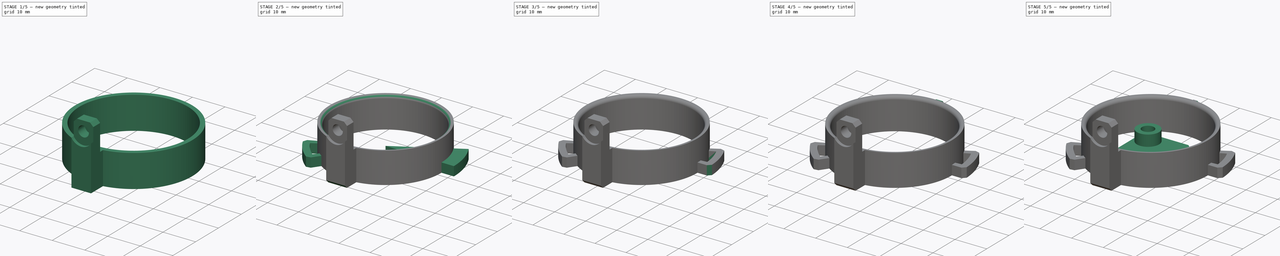
[diagram: build sequence overview — one tinted view per stage of 5, left to right]
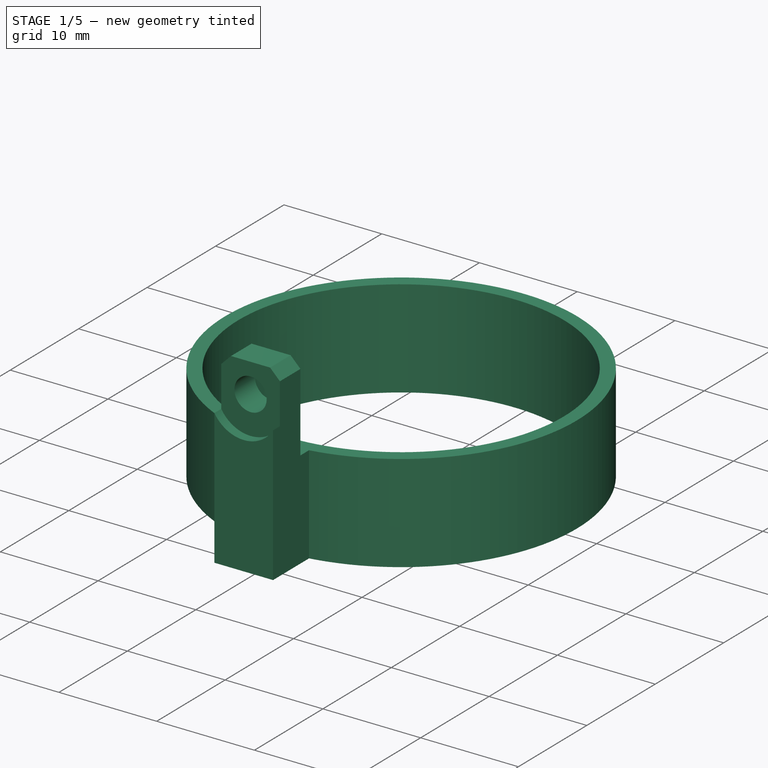
[diagram: stage 1 of 5 — iso view after this stage's code; geometry added in this stage tinted green]
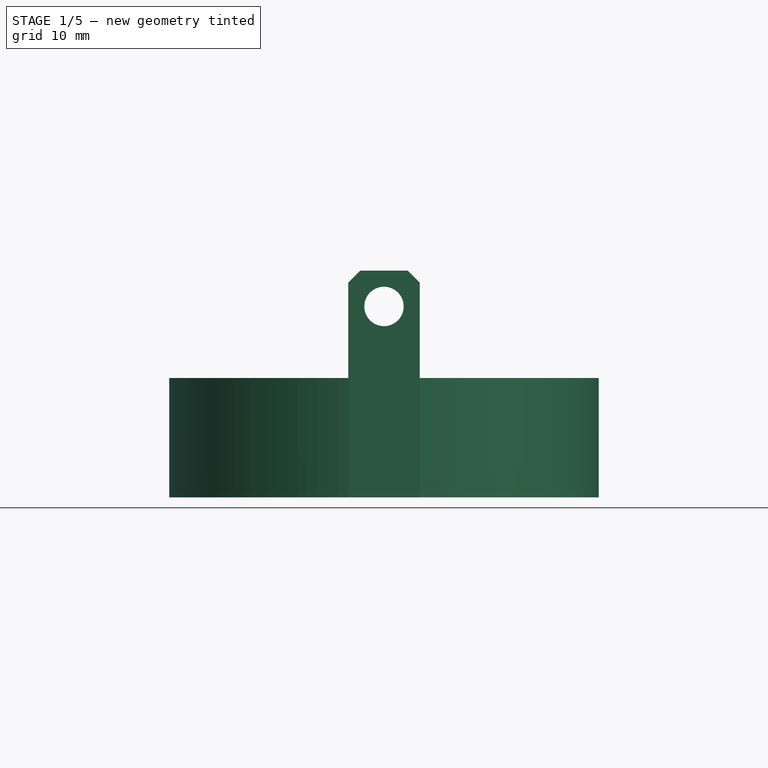
[diagram: stage 1 of 5 — front view after this stage's code; geometry added in this stage tinted green]
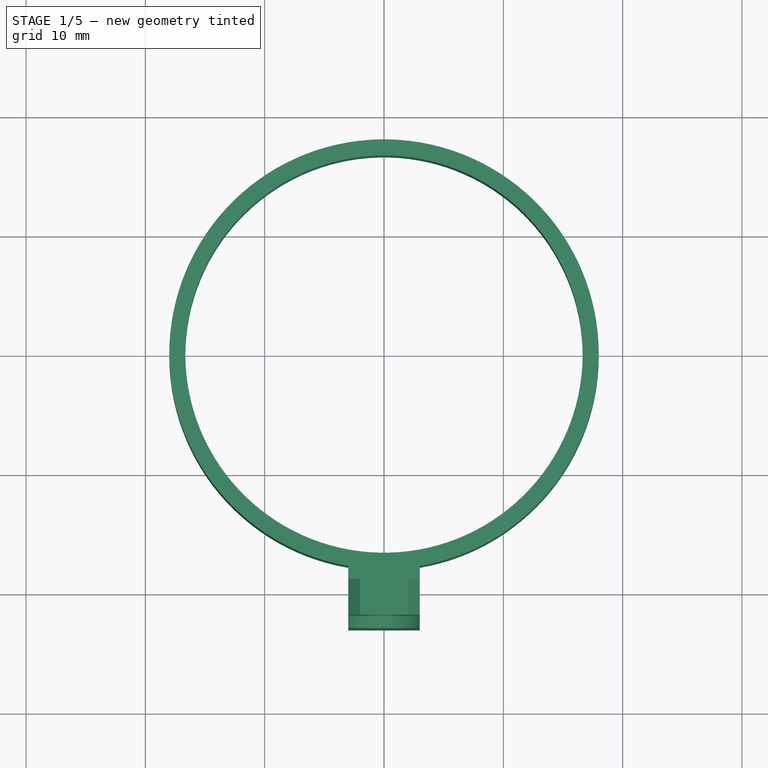
[diagram: stage 1 of 5 — top view after this stage's code; geometry added in this stage tinted green]
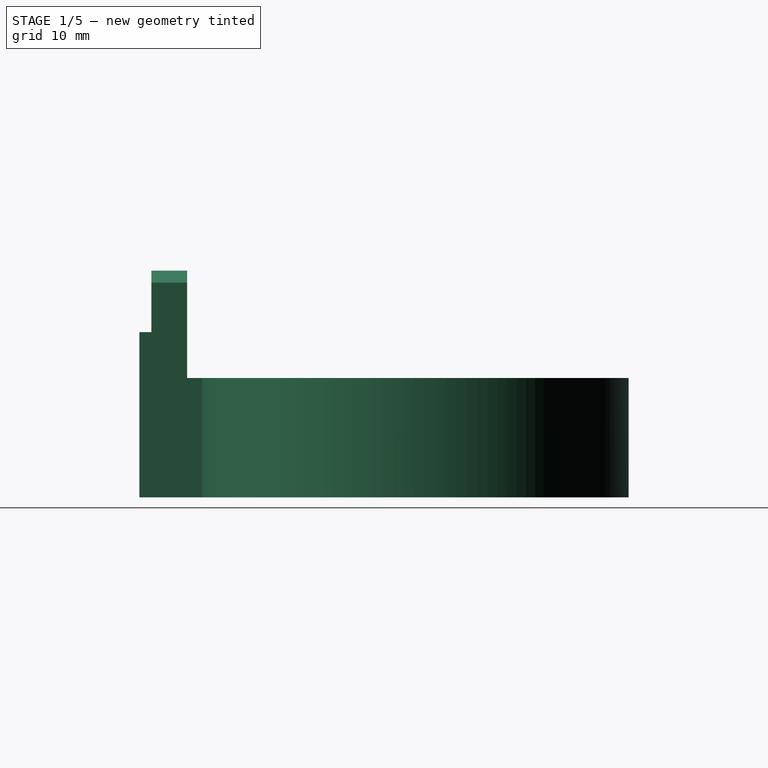
[diagram: stage 1 of 5 — right view after this stage's code; geometry added in this stage tinted green]
FCSTD DOCUMENT  (FreeCAD 0.19R24291 (Git))
Label: micro-drone-pprop-mounter
License: Other
LicenseURL: GPL3
objects: Sketcher::SketchObject×7, Part::Chamfer×7, PartDesign::Pad×5, Part::Feature×4, PartDesign::Chamfer×3, Part::Box×3, Part::Cylinder×3, Part::Cut×3, PartDesign::Body×2, PartDesign::Pocket×2, Part::MultiFuse×2, Part::Refine×2, Part::Fillet×1
note: 54 computed .brp shape members not serialized (recipe doc carries the construction recipe); baked Part::Feature solids carry a one-line shape summary decoded from their .brp

FEATURE [PartDesign::Body] Body
  Group = -> [Sketch,Pad,Sketch001,Pad001,Chamfer]
  Origin = -> Origin
  Tip = -> Chamfer
FEATURE [Sketcher::SketchObject] Sketch002
  FullyConstrained = true
  MapMode = 5
  Support = -> [XY_Plane001]
  sketch-geometry (2):
    g0: Circle CenterX=0 CenterY=0 CenterZ=0 NormalX=0 NormalY=0 NormalZ=1 AngleXU=0 Radius=16.65
    g1: Circle CenterX=0 CenterY=0 CenterZ=0 NormalX=0 NormalY=0 NormalZ=1 AngleXU=0 Radius=18
  constraints (4):
    c: Coincident(g0,g-1)
    c: Coincident(g1,g0)
    c: Radius(g1) = 18
    c: Radius(g0) = 16.65
FEATURE [PartDesign::Pad] Pad002
  Direction = (1,1,1)
  Length = 10
  Length2 = 100
  Profile = -> Sketch002
  Type = 0
FEATURE [Sketcher::SketchObject] Sketch003
  FullyConstrained = false
  MapMode = 5
  Placement = pos=(0,0,0) rot=(1,0,0;3.14159rad)
  Support = -> [Pad002]
  sketch-geometry (4):
    g0: ArcOfCircle CenterX=0 CenterY=0 CenterZ=0 NormalX=0 NormalY=0 NormalZ=1 AngleXU=0 Radius=17.2627 StartAngle=1.39612 EndAngle=1.74547
    g1: LineSegment StartX=-3 StartY=17 StartZ=0 EndX=-3 EndY=23 EndZ=0
    g2: LineSegment StartX=3 StartY=23 StartZ=0 EndX=3 EndY=17 EndZ=0
    g3: LineSegment StartX=-3 StartY=23 StartZ=0 EndX=3 EndY=23 EndZ=0
  constraints (8):
    c: Coincident(g0,g-1)
    c: Coincident(g1,g0)
    c: Vertical(g1)
    c: Coincident(g2,g0)
    c: Vertical(g2)
    c: Coincident(g3,g1)
    c: Coincident(g3,g2)
    c: Horizontal(g3)
FEATURE [PartDesign::Pad] Pad003
  BaseFeature = -> Pad002
  Direction = (1,1,1)
  Length = 10
  Length2 = 100
  Profile = -> Sketch003
  Reversed = true
  Type = 0
FEATURE [Sketcher::SketchObject] Sketch004
  FullyConstrained = false
  MapMode = 5
  Placement = pos=(0,0,10) rot=(0,0,1;0rad)
  Support = -> [Pad003]
  sketch-geometry (4):
    g0: LineSegment StartX=-3 StartY=-23 StartZ=0 EndX=3 EndY=-23 EndZ=0
    g1: LineSegment StartX=3 StartY=-23 StartZ=0 EndX=3 EndY=-19 EndZ=0
    g2: LineSegment StartX=3 StartY=-19 StartZ=0 EndX=-3 EndY=-19 EndZ=0
    g3: LineSegment StartX=-3 StartY=-19 StartZ=0 EndX=-3 EndY=-23 EndZ=0
  constraints (8):
    c: Coincident(g0,g1)
    c: Coincident(g1,g2)
    c: Coincident(g2,g3)
    c: Coincident(g3,g0)
    c: Horizontal(g0)
    c: Horizontal(g2)
    c: Vertical(g1)
    c: Vertical(g3)
FEATURE [PartDesign::Pad] Pad004
  BaseFeature = -> Pad003
  Direction = (1,1,1)
  Length = 9
  Length2 = 100
  Profile = -> Sketch004
  Type = 0
FEATURE [Sketcher::SketchObject] Sketch005
  FullyConstrained = false
  MapMode = 5
  Placement = pos=(0,-23,0) rot=(1,0,0;1.5708rad)
  Support = -> [Pad004]
  sketch-geometry (1):
    g0: Circle CenterX=0 CenterY=16 CenterZ=0 NormalX=0 NormalY=0 NormalZ=1 AngleXU=0 Radius=1.65
  constraints (2):
    c: PointOnObject(g0,g-2)
    c: Radius(g0) = 1.65
FEATURE [PartDesign::Pocket] Pocket
  BaseFeature = -> Pad004
  Length = 5
  Length2 = 100
  Profile = -> Sketch005
  Type = 0
FEATURE [Sketcher::SketchObject] Sketch006
  FullyConstrained = false
  MapMode = 5
  Placement = pos=(0,-23,0) rot=(1,0,0;1.5708rad)
  Support = -> [Pocket]
  sketch-geometry (4):
    g0: ArcOfCircle CenterX=0 CenterY=15.6476 CenterZ=0 NormalX=0 NormalY=0 NormalZ=1 AngleXU=0 Radius=3.5 StartAngle=3.14159 EndAngle=6.28319
    g1: LineSegment StartX=-3.5 StartY=15.6476 StartZ=0 EndX=-3.5 EndY=19 EndZ=0
    g2: LineSegment StartX=3.5 StartY=15.6476 StartZ=0 EndX=3.5 EndY=19 EndZ=0
    g3: LineSegment StartX=3.5 StartY=19 StartZ=0 EndX=-3.5 EndY=19 EndZ=0
  constraints (9):
    c: PointOnObject(g0,g-2)
    c: Radius(g0) = 3.5
    c: Tangent(g0,g1) = 1.5708
    c: Tangent(g0,g2) = -1.5708
    c: Coincident(g2,g3)
    c: Coincident(g3,g1)
    c: Horizontal(g3)
    c: Vertical(g1)
    c: Vertical(g2)
FEATURE [PartDesign::Pocket] Pocket001
  BaseFeature = -> Pocket
  Length = 1
  Length2 = 100
  Profile = -> Sketch006
  Type = 0
FEATURE [PartDesign::Chamfer] Chamfer001
  Angle = 45
  Base = -> Pocket001 [Edge45,Edge32]
  BaseFeature = -> Pocket001
  ChamferType = 0
  FlipDirection = false
  Size = 1
  Size2 = 1
  SupportTransform = false
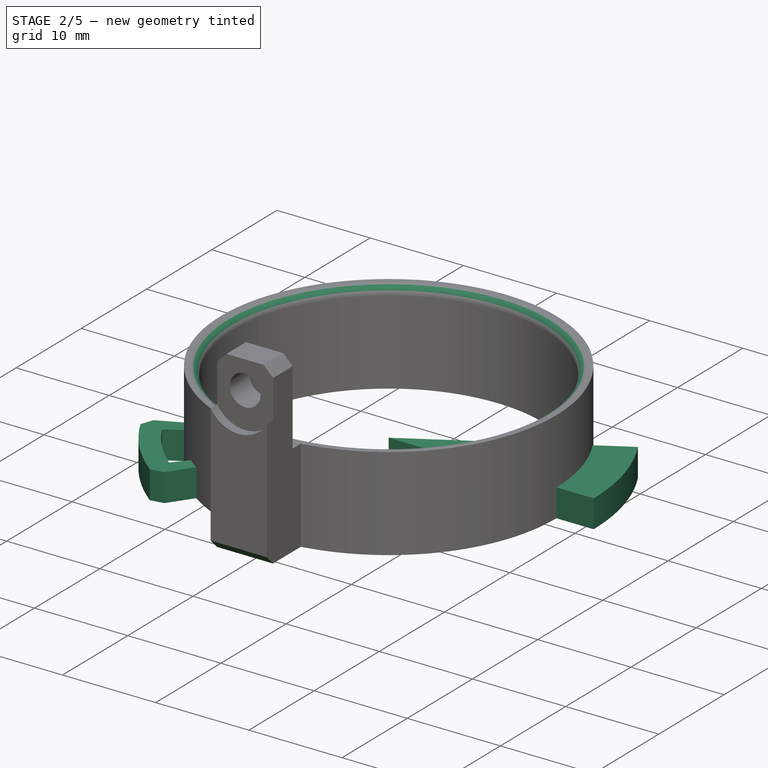
[diagram: stage 2 of 5 — iso view after this stage's code; geometry added in this stage tinted green]
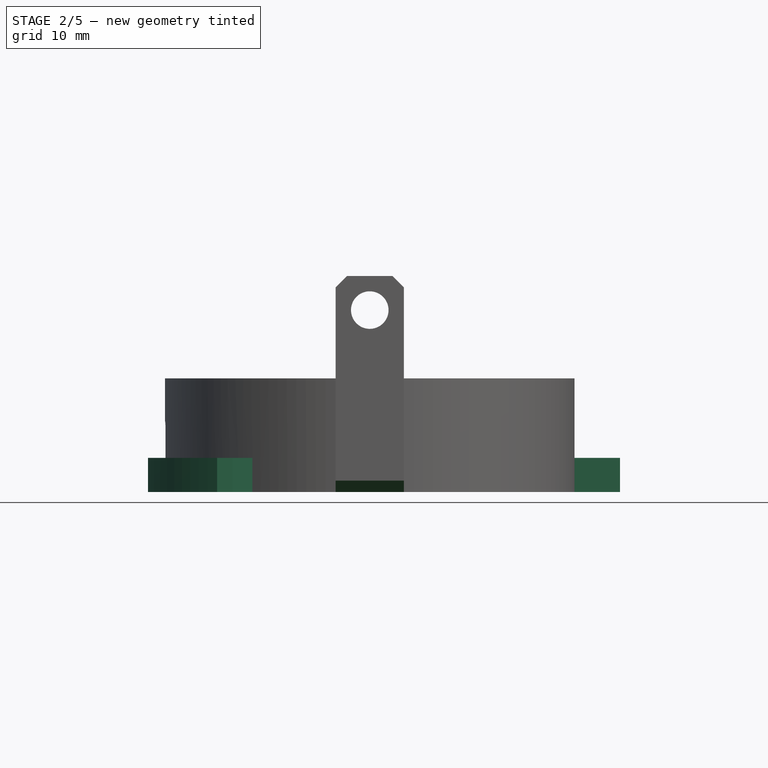
[diagram: stage 2 of 5 — front view after this stage's code; geometry added in this stage tinted green]
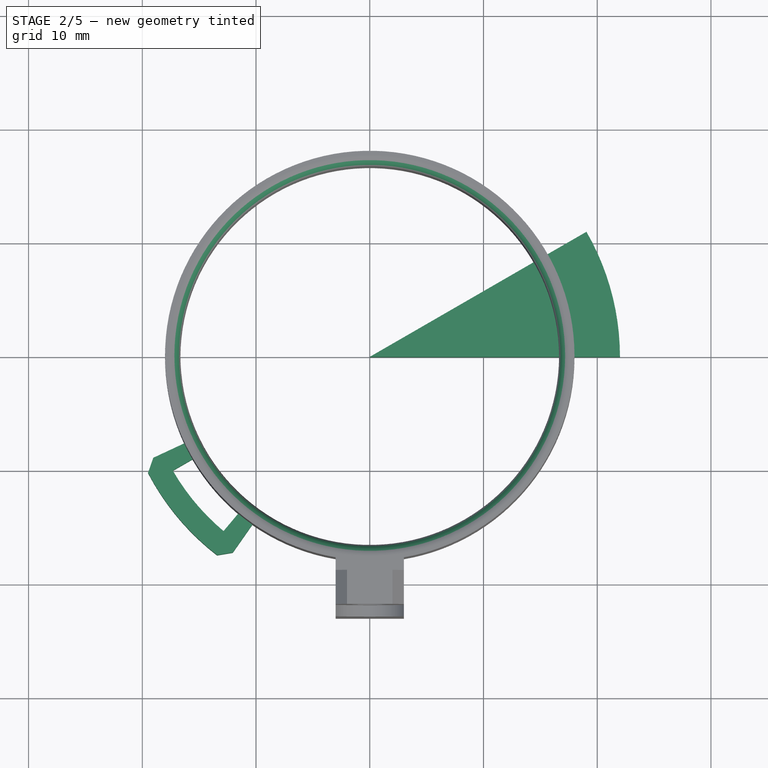
[diagram: stage 2 of 5 — top view after this stage's code; geometry added in this stage tinted green]
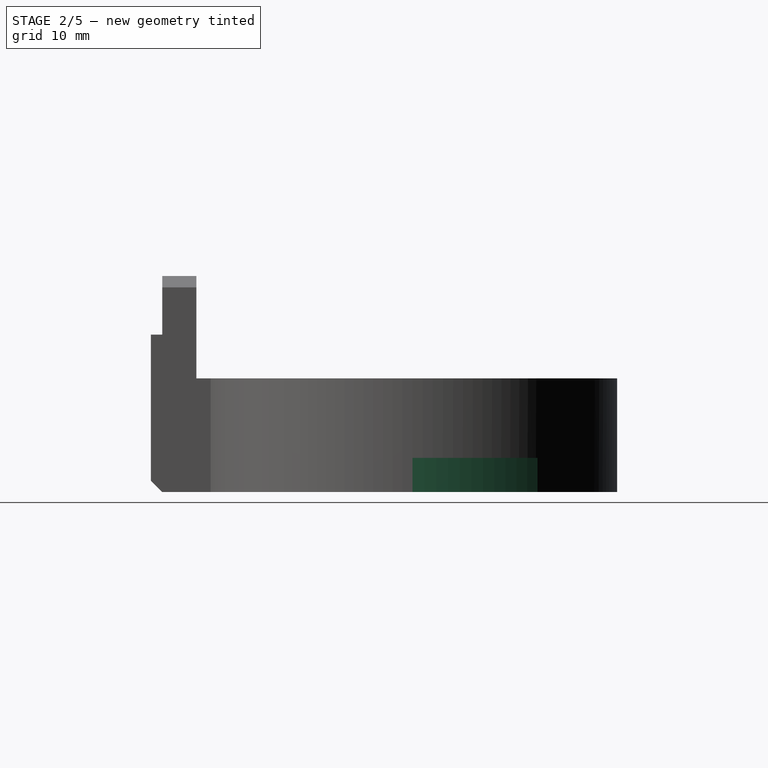
[diagram: stage 2 of 5 — right view after this stage's code; geometry added in this stage tinted green]
FEATURE [PartDesign::Chamfer] Chamfer002
  Angle = 45
  Base = -> Chamfer001 [Edge35]
  BaseFeature = -> Chamfer001
  ChamferType = 0
  FlipDirection = false
  Size = 1
  Size2 = 1
  SupportTransform = false
FEATURE [Part::Cylinder] Cylinder002
  Angle = 30
  AttacherType = Attacher::AttachEngine3D
  Height = 3
  Radius = 22
FEATURE [Part::Feature] Chamfer007003001
  Placement = pos=(0,0,0) rot=(0,0,-1;2.70526rad)
  shape: bbox 9.745 x 10.24 x 3 mm, 12 faces (baked)
FEATURE [Part::Cut] Cut
  Base = -> Chamfer002
  Tool = -> Fillet001001
FEATURE [Part::MultiFuse] Fusion002
  Shapes = -> [Cut,Chamfer007003001]
FEATURE [Part::Refine] Fusion002001
  Source = -> Fusion002
FEATURE [Part::Fillet] Fillet
  Base = -> Fusion002001
  Edges = 1 edges r=1: [Edge90]
FEATURE [Part::Chamfer] Chamfer007003002
  Base = -> Fillet
  Edges = 16 edges r=0.2: [Edge4,Edge5,Edge6,Edge7,Edge8,Edge9,Edge10,Edge11,Edge30,Edge32,Edge34,Edge37,Edge39,Edge40,Edge42,Edge44]
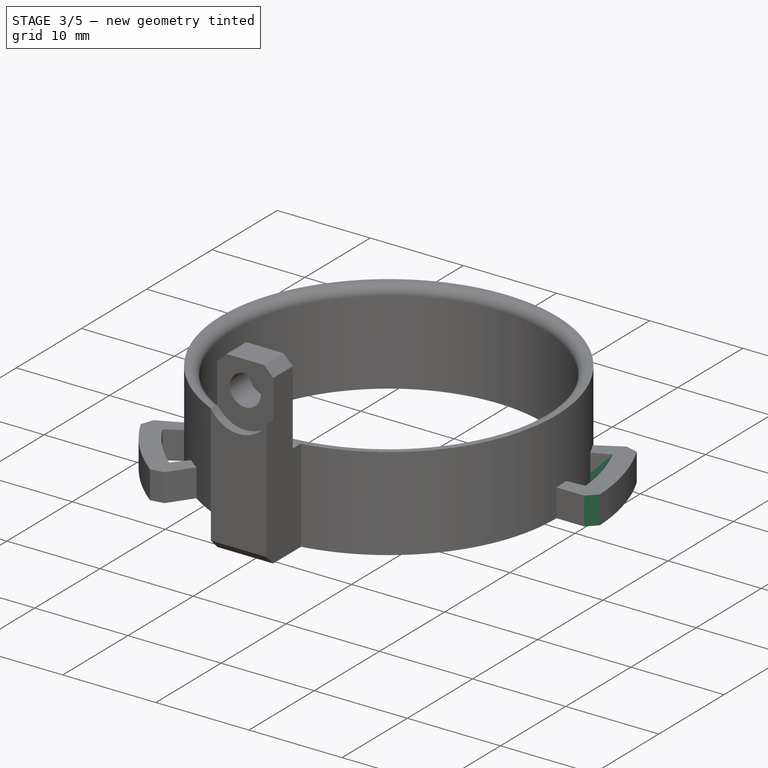
[diagram: stage 3 of 5 — iso view after this stage's code; geometry added in this stage tinted green]
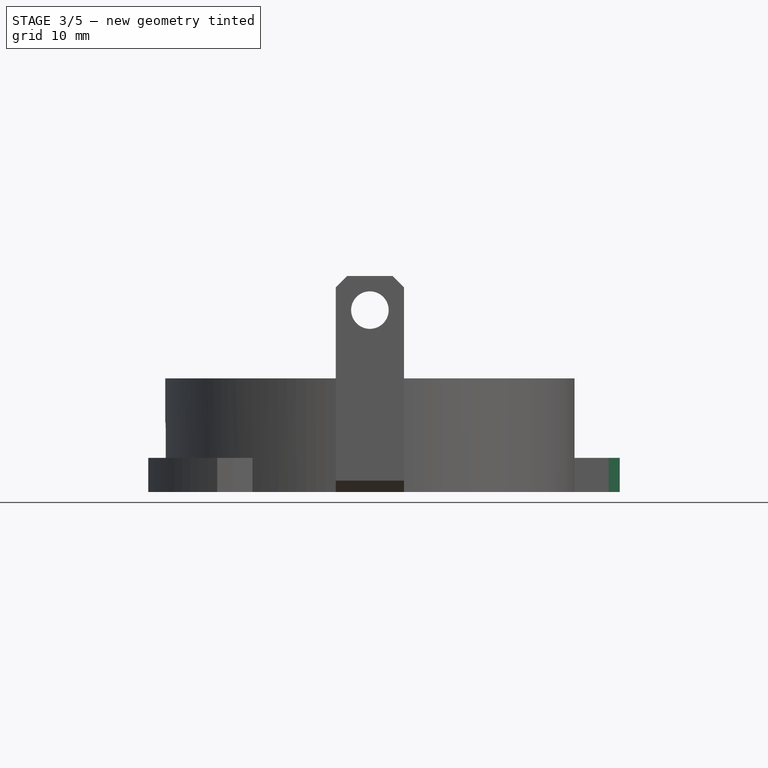
[diagram: stage 3 of 5 — front view after this stage's code; geometry added in this stage tinted green]
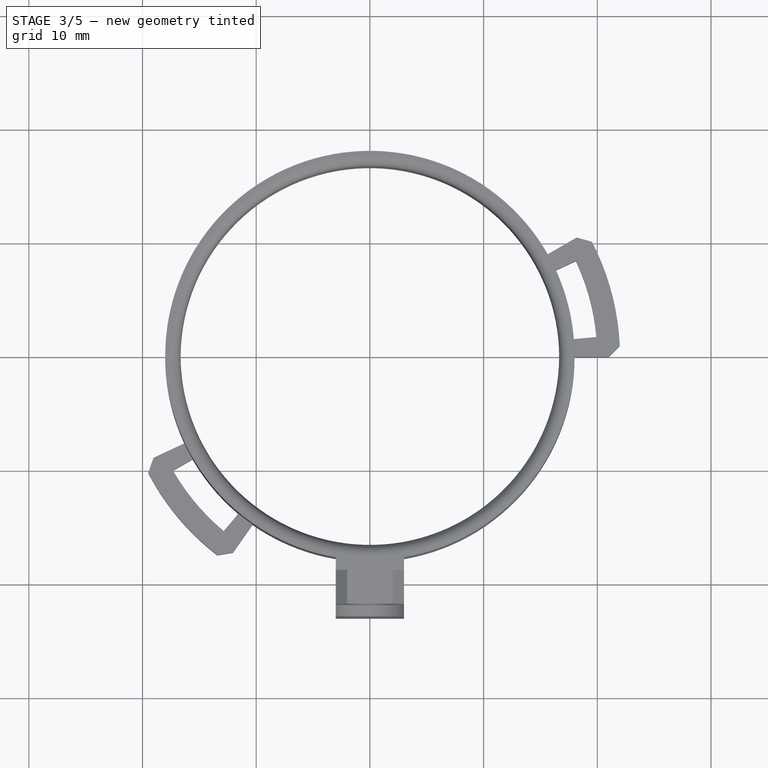
[diagram: stage 3 of 5 — top view after this stage's code; geometry added in this stage tinted green]
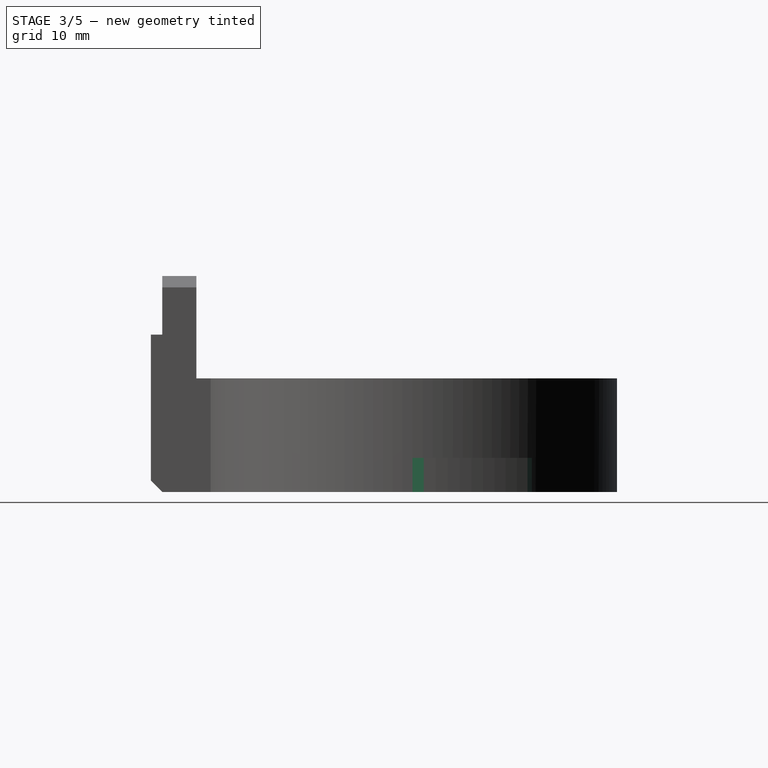
[diagram: stage 3 of 5 — right view after this stage's code; geometry added in this stage tinted green]
FEATURE [Part::Feature] Chamfer007001
  Placement = pos=(0,0,0) rot=(0,0,1;2.79253rad)
  shape: bbox 2.94 x 3.836 x 9 mm, 36 faces (baked)
FEATURE [Part::Feature] Chamfer007002
  Placement = pos=(0,0,0) rot=(0,0,1;2.53073rad)
  shape: bbox 3.416 x 3.785 x 9 mm, 36 faces (baked)
FEATURE [Part::Cylinder] Cylinder
  Angle = 20
  AttacherType = Attacher::AttachEngine3D
  Height = 3
  Placement = pos=(0,0,0) rot=(0,0,1;0.087266rad)
  Radius = 20
FEATURE [Part::Cylinder] Cylinder001
  Angle = 30
  AttacherType = Attacher::AttachEngine3D
  Height = 3
  Radius = 17
FEATURE [Part::Cut] Cut001
  Base = -> Cylinder002
  Tool = -> Cylinder
FEATURE [Part::Cut] Cut002
  Base = -> Cut001
  Tool = -> Cylinder001
FEATURE [Part::Chamfer] Chamfer007003
  Base = -> Cut002
  Edges = 2 edges r=1: [Edge2,Edge4]
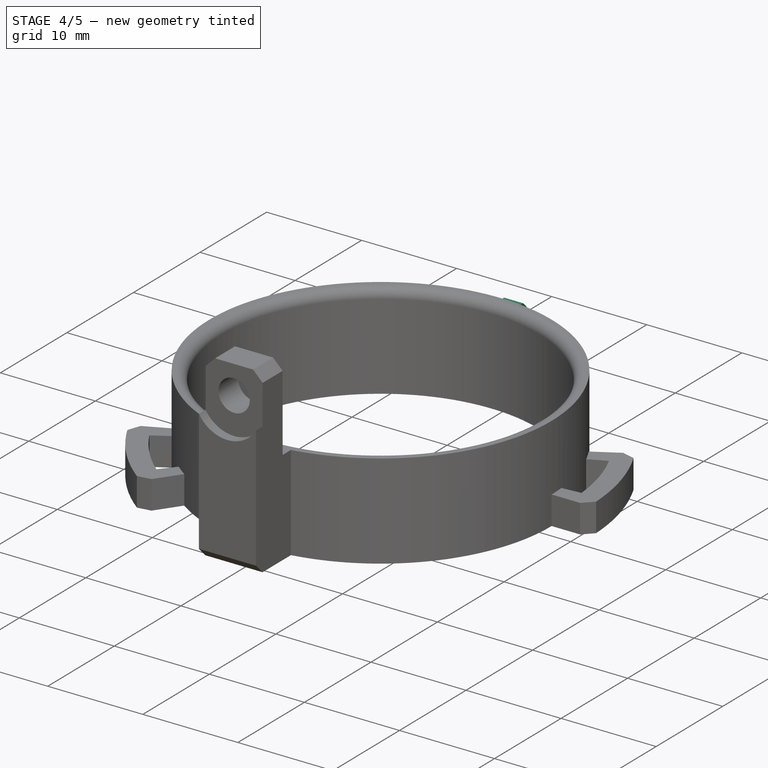
[diagram: stage 4 of 5 — iso view after this stage's code; geometry added in this stage tinted green]
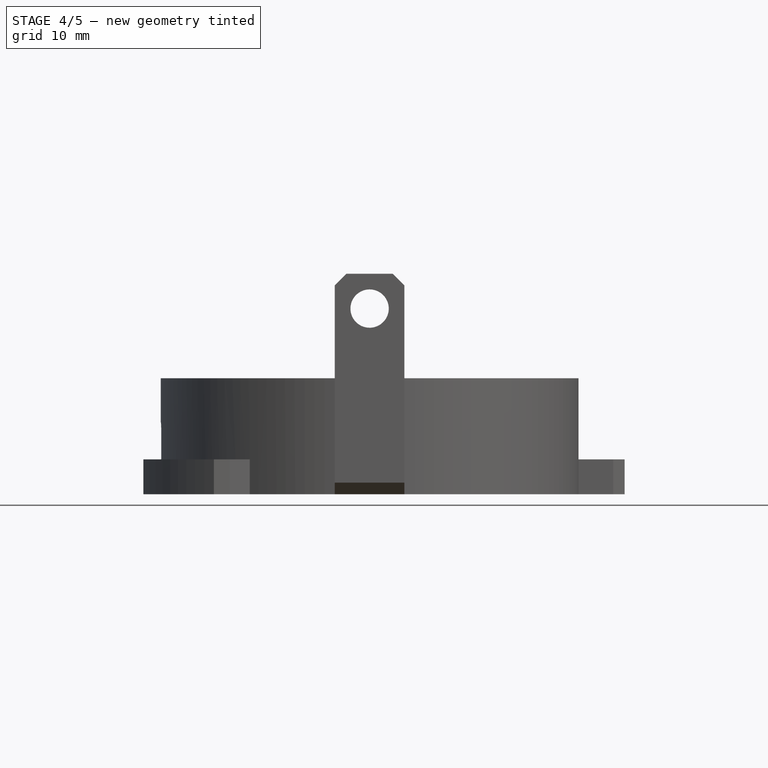
[diagram: stage 4 of 5 — front view after this stage's code; geometry added in this stage tinted green]
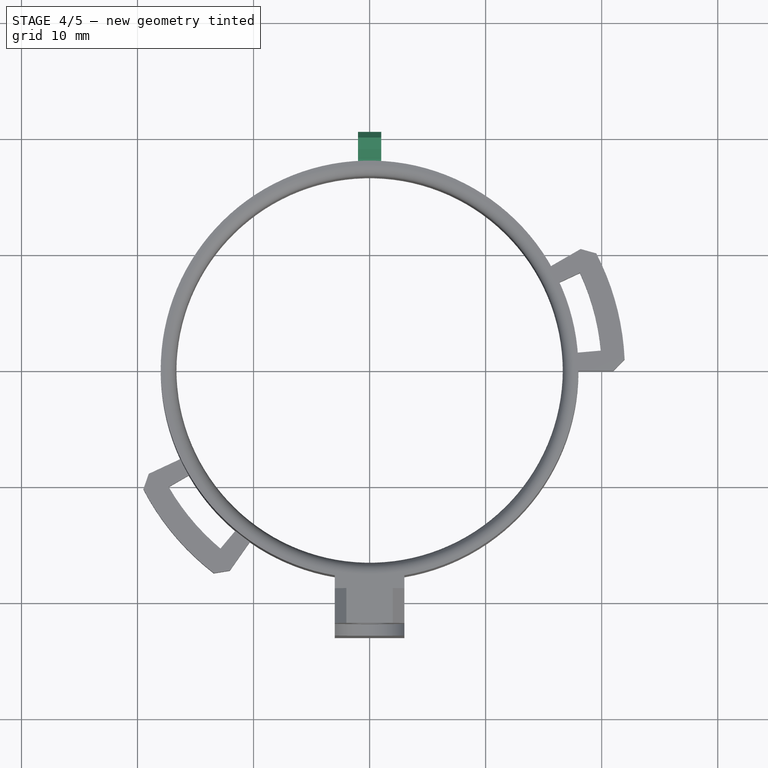
[diagram: stage 4 of 5 — top view after this stage's code; geometry added in this stage tinted green]
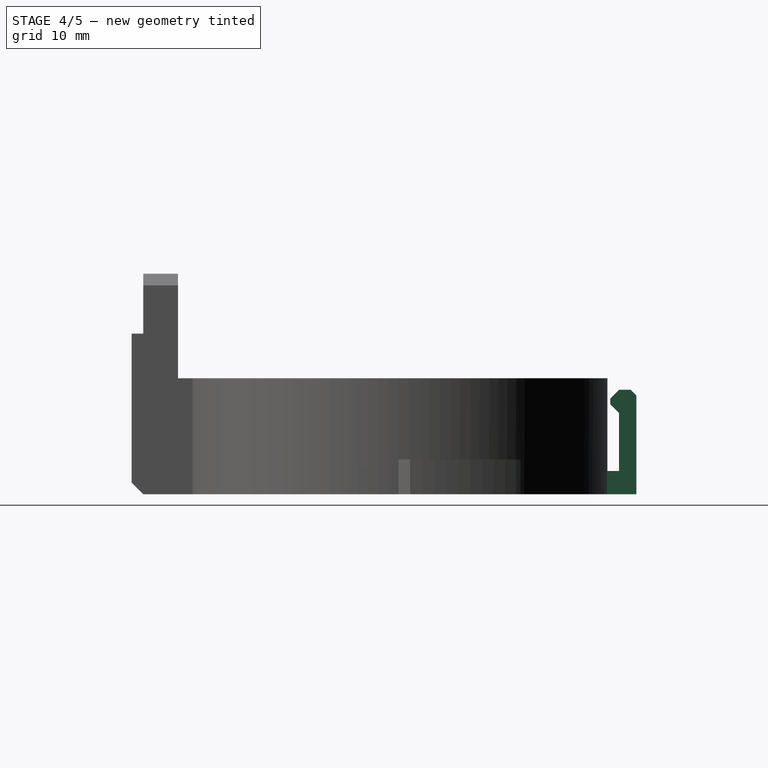
[diagram: stage 4 of 5 — right view after this stage's code; geometry added in this stage tinted green]
FEATURE [PartDesign::Body] Body001
  Group = -> [Sketch002,Pad002,Sketch003,Pad003,Sketch004,Pad004,Sketch005,Pocket,Sketch006,Pocket001,Chamfer001,Chamfer002]
  Origin = -> Origin001
  Tip = -> Chamfer002
FEATURE [Part::Feature] Fillet001001
  Placement = pos=(0,0,0) rot=(0,0,1;1.5708rad)
  shape: bbox 10 x 2 x 4 mm, 10 faces (baked)
FEATURE [Part::Box] Box  label="Cube"
  AttacherType = Attacher::AttachEngine3D
  Height = 2
  Length = 2
  Placement = pos=(-1,17,0) rot=(0,0,1;0rad)
  Width = 3.5
FEATURE [Part::Box] Box001  label="Cube001"
  AttacherType = Attacher::AttachEngine3D
  Height = 9
  Length = 2
  Placement = pos=(-1,19,0) rot=(0,0,1;0rad)
  Width = 1.5
FEATURE [Part::Box] Box002  label="Cube002"
  AttacherType = Attacher::AttachEngine3D
  Height = 2
  Length = 2
  Placement = pos=(-1,18.25,7) rot=(0,0,1;0rad)
  Width = 1.5
FEATURE [Part::Chamfer] Chamfer003
  Base = -> Box002
  Edges = 2 edges r=0.75: [Edge9,Edge10]
FEATURE [Part::Chamfer] Chamfer004
  Base = -> Box001
  Edges = 1 edges r=0.5: [Edge12]
FEATURE [Part::MultiFuse] Fusion
  Shapes = -> [Chamfer004,Chamfer003,Box]
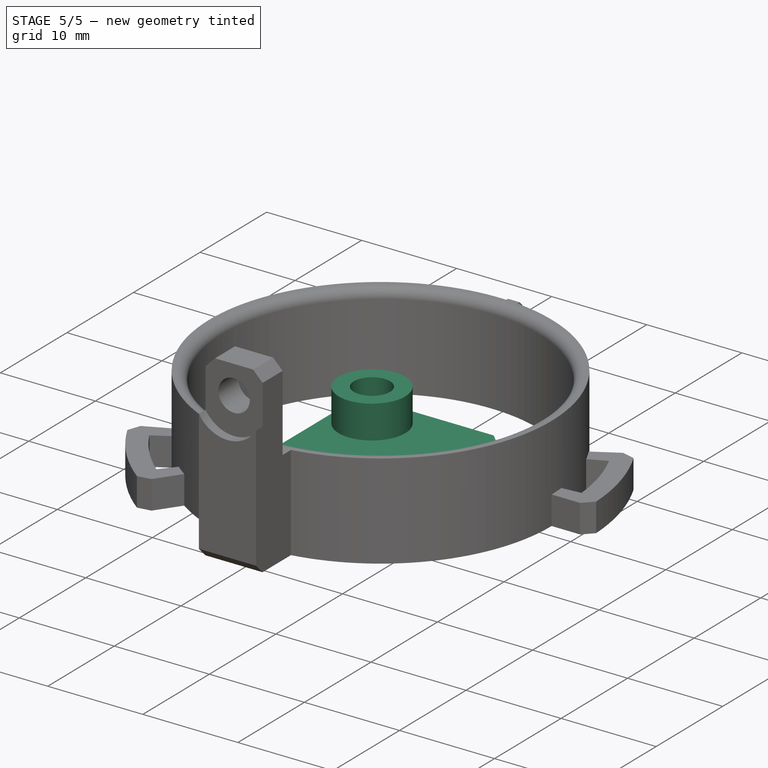
[diagram: stage 5 of 5 — iso view after this stage's code; geometry added in this stage tinted green]
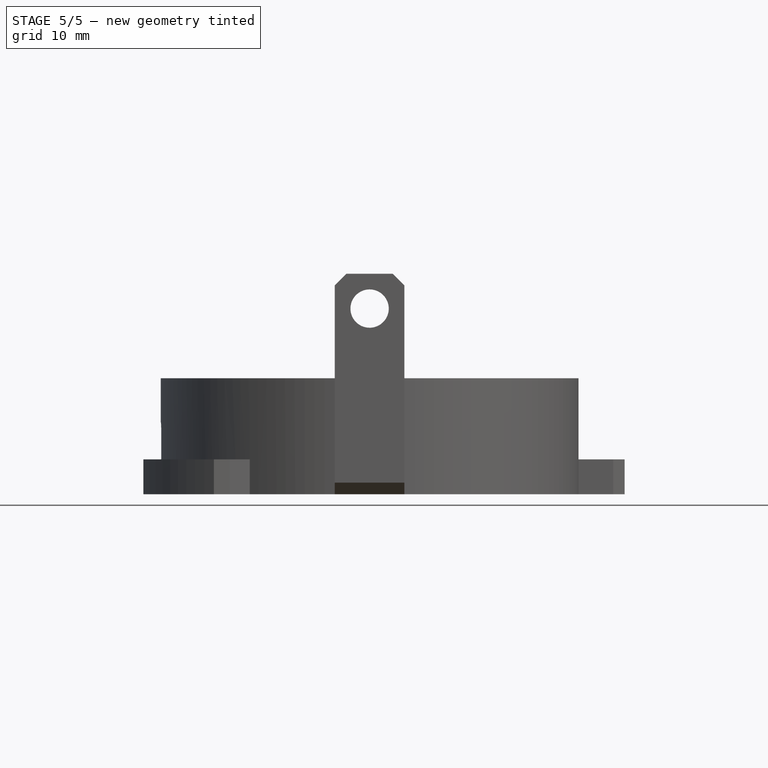
[diagram: stage 5 of 5 — front view after this stage's code; geometry added in this stage tinted green]
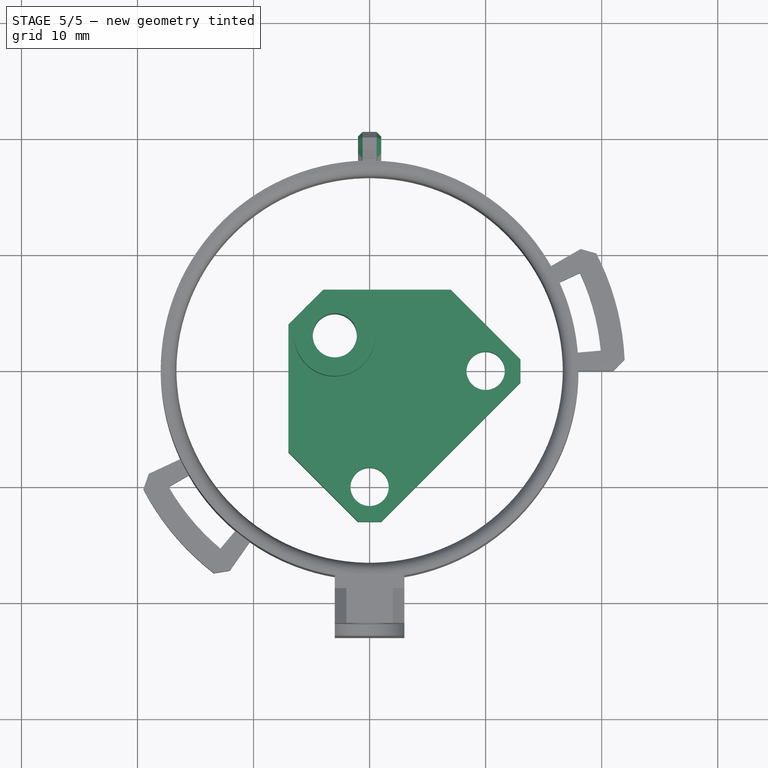
[diagram: stage 5 of 5 — top view after this stage's code; geometry added in this stage tinted green]
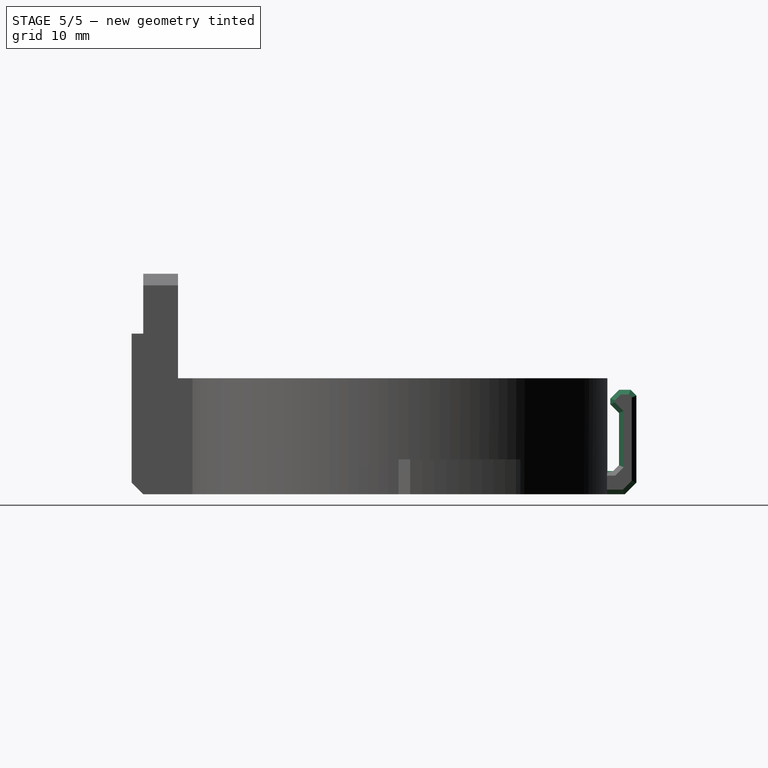
[diagram: stage 5 of 5 — right view after this stage's code; geometry added in this stage tinted green]
FEATURE [Sketcher::SketchObject] Sketch
  FullyConstrained = false
  MapMode = 5
  Support = -> [XY_Plane]
  sketch-geometry (11):
    g0: Circle CenterX=0 CenterY=-10 CenterZ=0 NormalX=0 NormalY=0 NormalZ=1 AngleXU=0 Radius=1.65
    g1: Circle CenterX=10 CenterY=0 CenterZ=0 NormalX=0 NormalY=0 NormalZ=1 AngleXU=0 Radius=1.65
    g2: Circle CenterX=-3 CenterY=3 CenterZ=0 NormalX=0 NormalY=0 NormalZ=1 AngleXU=0 Radius=1.9
    g3: LineSegment StartX=-1 StartY=-13 StartZ=0 EndX=1 EndY=-13 EndZ=0
    g4: LineSegment StartX=13 StartY=1 StartZ=0 EndX=13 EndY=-1 EndZ=0
    g5: LineSegment StartX=1 StartY=-13 StartZ=0 EndX=13 EndY=-1 EndZ=0
    g6: LineSegment StartX=-1 StartY=-13 StartZ=0 EndX=-7 EndY=-7 EndZ=0
    g7: LineSegment StartX=13 StartY=1 StartZ=0 EndX=7 EndY=7 EndZ=0
    g8: LineSegment StartX=-7 StartY=-7 StartZ=0 EndX=-7 EndY=4 EndZ=0
    g9: LineSegment StartX=-7 StartY=4 StartZ=0 EndX=-4 EndY=7 EndZ=0
    g10: LineSegment StartX=7 StartY=7 StartZ=0 EndX=-4 EndY=7 EndZ=0
  constraints (21):
    c: PointOnObject(g0,g-2)
    c: PointOnObject(g1,g-1)
    c: Radius(g1) = 1.65
    c: Radius(g0) = 1.65
    c: DistanceX(g-1,g1) = 10
    c: DistanceY(g0,g-1) = 10
    c: Radius(g2) = 1.9
    c: DistanceX(g2,g-1) = 3
    c: DistanceY(g-1,g2) = 3
    c: Horizontal(g3)
    c: Vertical(g4)
    c: Coincident(g3,g5)
    c: Coincident(g5,g4)
    c: Coincident(g6,g3)
    c: Coincident(g7,g4)
    c: Coincident(g8,g6)
    c: Vertical(g8)
    c: Coincident(g9,g8)
    c: Coincident(g10,g7)
    c: Coincident(g10,g9)
    c: Horizontal(g10)
FEATURE [PartDesign::Pad] Pad
  Direction = (1,1,1)
  Length = 3
  Length2 = 100
  Profile = -> Sketch
  Type = 0
FEATURE [Sketcher::SketchObject] Sketch001
  FullyConstrained = true
  MapMode = 5
  Placement = pos=(0,0,3) rot=(0,0,1;0rad)
  Support = -> [Pad]
  sketch-geometry (2):
    g0: Circle CenterX=-3 CenterY=3 CenterZ=0 NormalX=0 NormalY=0 NormalZ=1 AngleXU=0 Radius=3.5
    g1: Circle CenterX=-3 CenterY=3 CenterZ=0 NormalX=0 NormalY=0 NormalZ=1 AngleXU=0 Radius=1.9
  constraints (5):
    c: Radius(g0) = 3.5
    c: DistanceX(g0,g-1) = 3
    c: DistanceY(g-1,g0) = 3
    c: Coincident(g1,g0)
    c: Radius(g1) = 1.9
FEATURE [PartDesign::Pad] Pad001
  BaseFeature = -> Pad
  Direction = (1,1,1)
  Length = 3.5
  Length2 = 100
  Profile = -> Sketch001
  Type = 0
FEATURE [PartDesign::Chamfer] Chamfer
  Angle = 45
  Base = -> Pad001 [Edge16]
  BaseFeature = -> Pad001
  ChamferType = 0
  FlipDirection = false
  Size = 0.4
  Size2 = 1
  SupportTransform = false
FEATURE [Part::Refine] Fusion001
  Source = -> Fusion
FEATURE [Part::Chamfer] Chamfer005
  Base = -> Fusion001
  Edges = 1 edges r=1: [Edge27]
FEATURE [Part::Chamfer] Chamfer006
  Base = -> Chamfer005
  Edges = 1 edges r=0.5: [Edge27]
FEATURE [Part::Chamfer] Chamfer007
  Base = -> Chamfer006
  Edges = 22 edges r=0.4: [Edge1,Edge2,Edge3,Edge4,Edge5,Edge6,Edge7,Edge8,Edge9,Edge10,Edge11,Edge14,Edge16,Edge20,Edge22,Edge25,Edge26,Edge28,Edge30,Edge32,Edge34,Edge36]
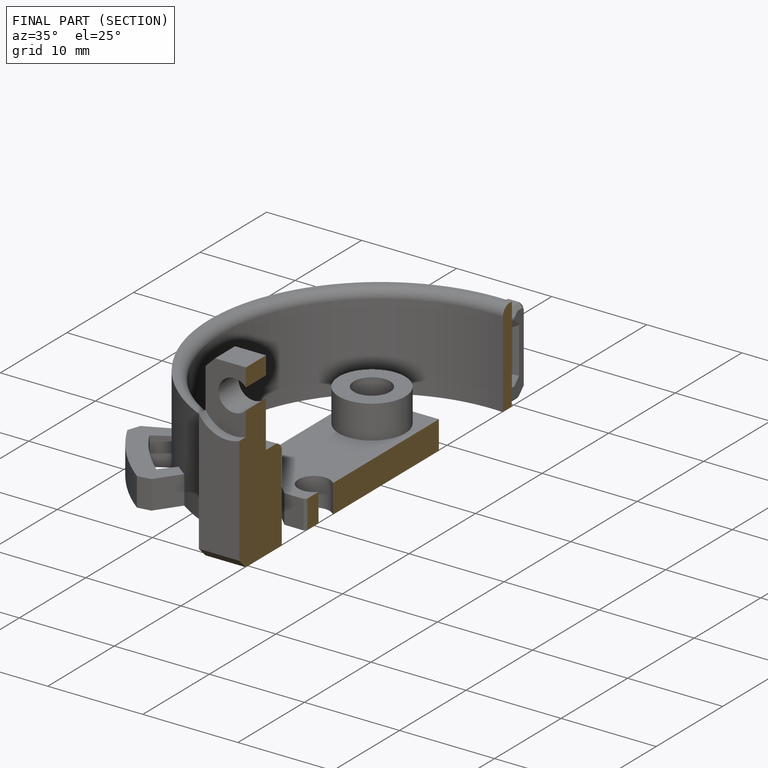
[diagram: finished part — half-section view (interior)]
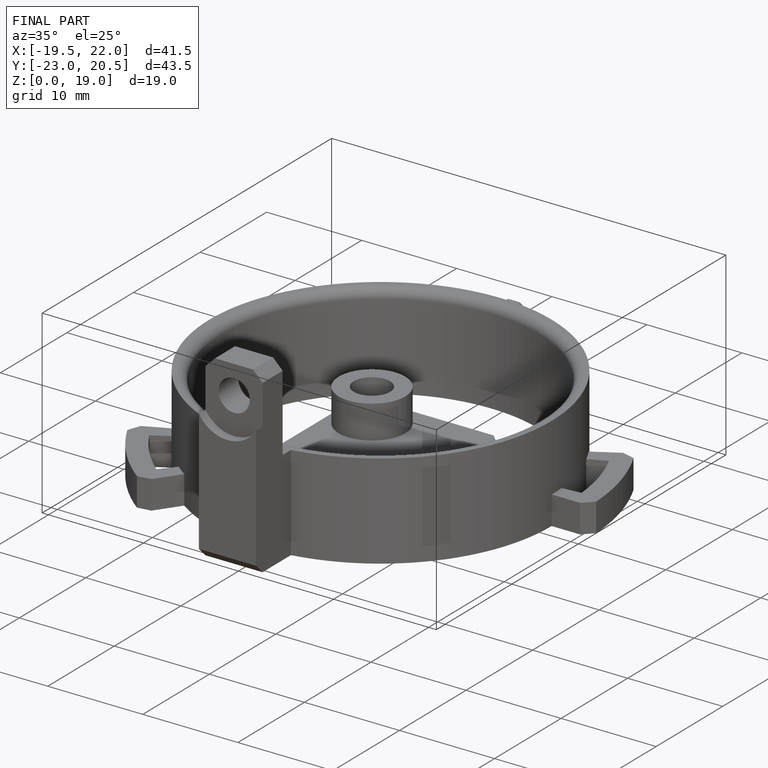
[diagram: finished part — iso view with bounding-box wireframe]
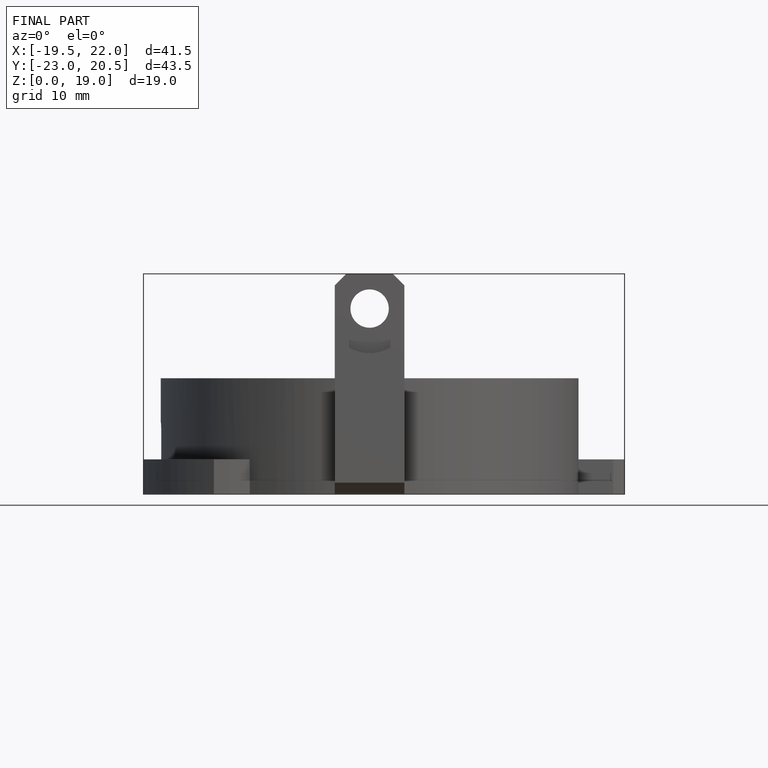
[diagram: finished part — front view with bounding-box wireframe]
